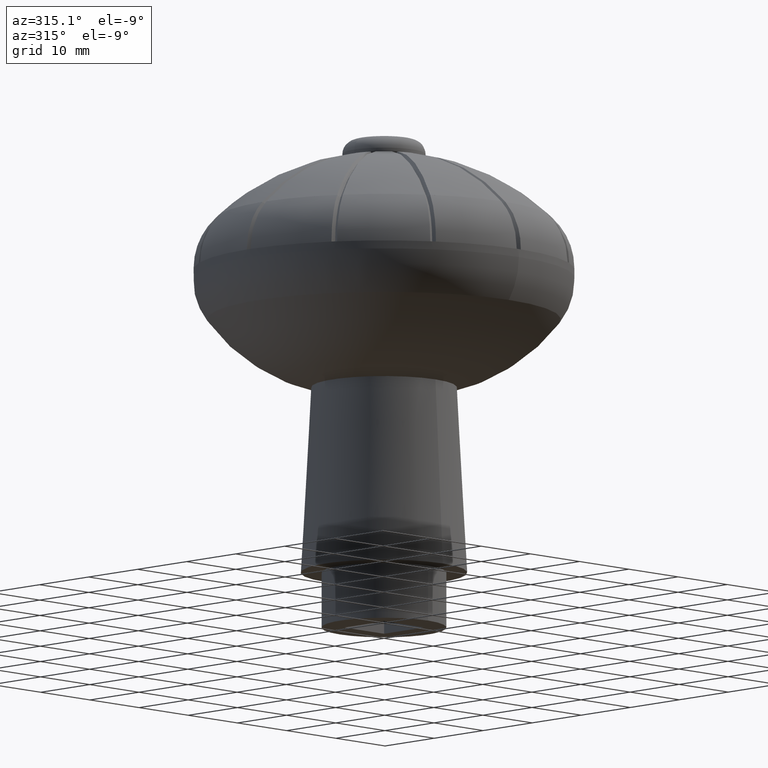
[diagram: clean part render]
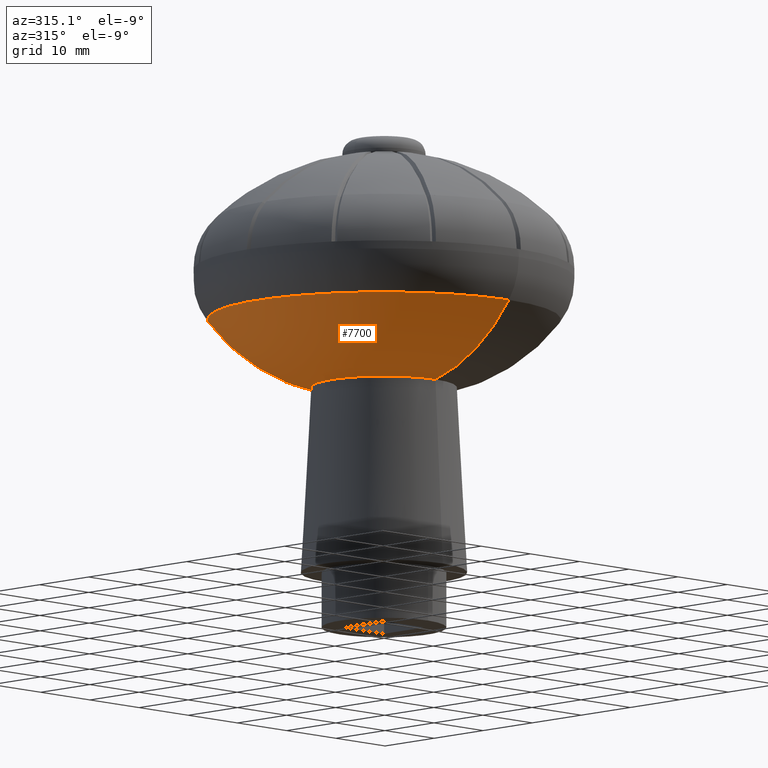
[diagram: same view with one face highlighted and labeled with its STEP entity id]
A machine part, auxiliary view. The second image highlights one B-rep face of the part: STEP entity #7700.
In plain terms, the highlighted toroidal blend (fillet) surface has major radius 3.9419 mm and minor (blend) radius 27 mm.
Its self-contained STEP definition (entity closure, byte-faithful):
#24 = DIRECTION ( 'NONE',  ( -1.000000000000000000, 0.0000000000000000000, -0.0000000000000000000 ) ) ;
#128 = ORIENTED_EDGE ( 'NONE', *, *, #10100, .T. ) ;
#280 = AXIS2_PLACEMENT_3D ( 'NONE', #5429, #13051, #6530 ) ;
#602 = CARTESIAN_POINT ( 'NONE',  ( 0.0000000000000000000, 0.0000000000000000000, 0.0000000000000000000 ) ) ;
#929 = TOROIDAL_SURFACE ( 'NONE', #8728, 3.941852152608992500, 27.00000000000000400 ) ;
#1478 = ORIENTED_EDGE ( 'NONE', *, *, #6786, .T. ) ;
#1522 = VERTEX_POINT ( 'NONE', #5652 ) ;
#1725 = DIRECTION ( 'NONE',  ( 0.0000000000000000000, -1.000000000000000000, -2.423510738497009600E-016 ) ) ;
#2024 = VERTEX_POINT ( 'NONE', #2638 ) ;
#2244 = VERTEX_POINT ( 'NONE', #11345 ) ;
#2638 = CARTESIAN_POINT ( 'NONE',  ( 1.377727649040772000E-015, -10.50000000000000000, -2.544686275421860200E-015 ) ) ;
#4225 = FACE_OUTER_BOUND ( 'NONE', #8363, .T. ) ;
#4401 = DIRECTION ( 'NONE',  ( 0.0000000000000000000, 2.423510738497009600E-016, -1.000000000000000000 ) ) ;
#5426 = CIRCLE ( 'NONE', #280, 27.00000000000000400 ) ;
#5429 = CARTESIAN_POINT ( 'NONE',  ( 4.827376621404705900E-016, 3.941852152608985400, 26.19142410812671100 ) ) ;
#5564 = AXIS2_PLACEMENT_3D ( 'NONE', #602, #8281, #1725 ) ;
#5626 = ORIENTED_EDGE ( 'NONE', *, *, #9344, .F. ) ;
#5652 = CARTESIAN_POINT ( 'NONE',  ( 0.0000000000000000000, -25.47538108670061200, 9.903172770286920100 ) ) ;
#5744 = CIRCLE ( 'NONE', #5564, 10.50000000000000000 ) ;
#6117 = CIRCLE ( 'NONE', #8099, 25.47538108670060500 ) ;
#6403 = CARTESIAN_POINT ( 'NONE',  ( 0.0000000000000000000, -6.938893903907228400E-015, 26.19142410812671100 ) ) ;
#6530 = DIRECTION ( 'NONE',  ( 1.224646799147353200E-016, 1.000000000000000000, 0.0000000000000000000 ) ) ;
#6607 = CARTESIAN_POINT ( 'NONE',  ( 0.0000000000000000000, -3.941852152608999100, 26.19142410812671100 ) ) ;
#6786 = EDGE_CURVE ( 'NONE', #2024, #1522, #11587, .T. ) ;
#7473 = CARTESIAN_POINT ( 'NONE',  ( 3.119834390488691500E-015, 25.47538108670059700, 9.903172770286930800 ) ) ;
#7694 = DIRECTION ( 'NONE',  ( 0.0000000000000000000, 0.0000000000000000000, 1.000000000000000000 ) ) ;
#7700 = ADVANCED_FACE ( 'NONE', ( #4225 ), #929, .T. ) ;
#7707 = VERTEX_POINT ( 'NONE', #7473 ) ;
#8099 = AXIS2_PLACEMENT_3D ( 'NONE', #10938, #4401, #12052 ) ;
#8281 = DIRECTION ( 'NONE',  ( -0.0000000000000000000, -2.423510738497009600E-016, 1.000000000000000000 ) ) ;
#8363 = EDGE_LOOP ( 'NONE', ( #5626, #10285, #1478, #128 ) ) ;
#8728 = AXIS2_PLACEMENT_3D ( 'NONE', #6403, #9628, #14015 ) ;
#9344 = EDGE_CURVE ( 'NONE', #2244, #7707, #5426, .T. ) ;
#9628 = DIRECTION ( 'NONE',  ( -0.0000000000000000000, -2.423510738497009600E-016, 1.000000000000000000 ) ) ;
#10100 = EDGE_CURVE ( 'NONE', #1522, #7707, #6117, .T. ) ;
#10285 = ORIENTED_EDGE ( 'NONE', *, *, #12121, .T. ) ;
#10731 = AXIS2_PLACEMENT_3D ( 'NONE', #6607, #24, #7694 ) ;
#10938 = CARTESIAN_POINT ( 'NONE',  ( 0.0000000000000000000, -2.991418701047928200E-015, 9.903172770286925400 ) ) ;
#11345 = CARTESIAN_POINT ( 'NONE',  ( 0.0000000000000000000, 10.50000000000000000, 2.544686275421860200E-015 ) ) ;
#11587 = CIRCLE ( 'NONE', #10731, 27.00000000000000700 ) ;
#12052 = DIRECTION ( 'NONE',  ( 0.0000000000000000000, -1.000000000000000000, -2.723764516138944300E-016 ) ) ;
#12121 = EDGE_CURVE ( 'NONE', #2244, #2024, #5744, .T. ) ;
#13051 = DIRECTION ( 'NONE',  ( 1.000000000000000000, -1.224646799147353200E-016, -2.967944668599600900E-032 ) ) ;
#14015 = DIRECTION ( 'NONE',  ( 0.0000000000000000000, -1.000000000000000000, -2.423510738497009600E-016 ) ) ;